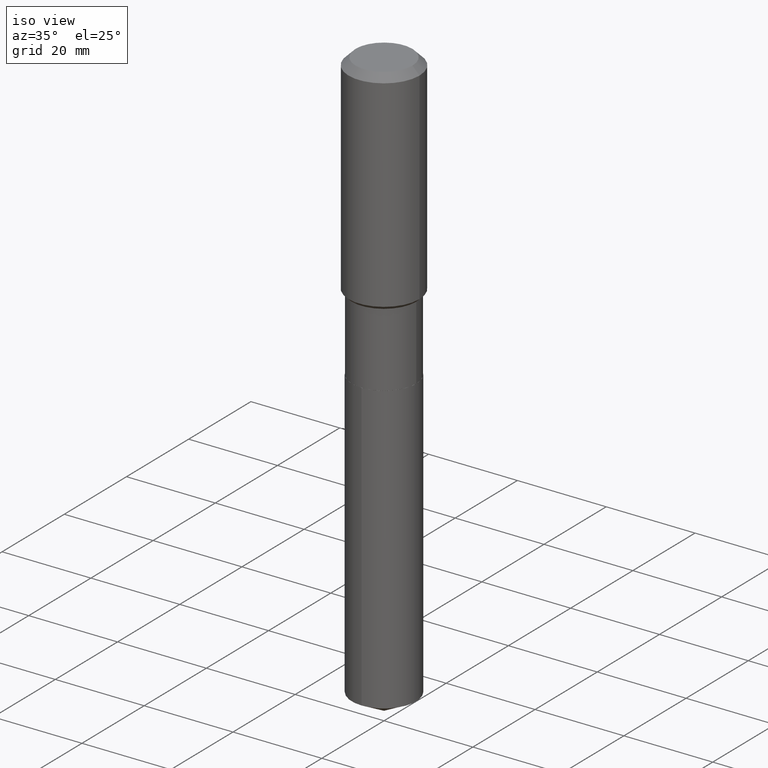
[diagram: clean part render]
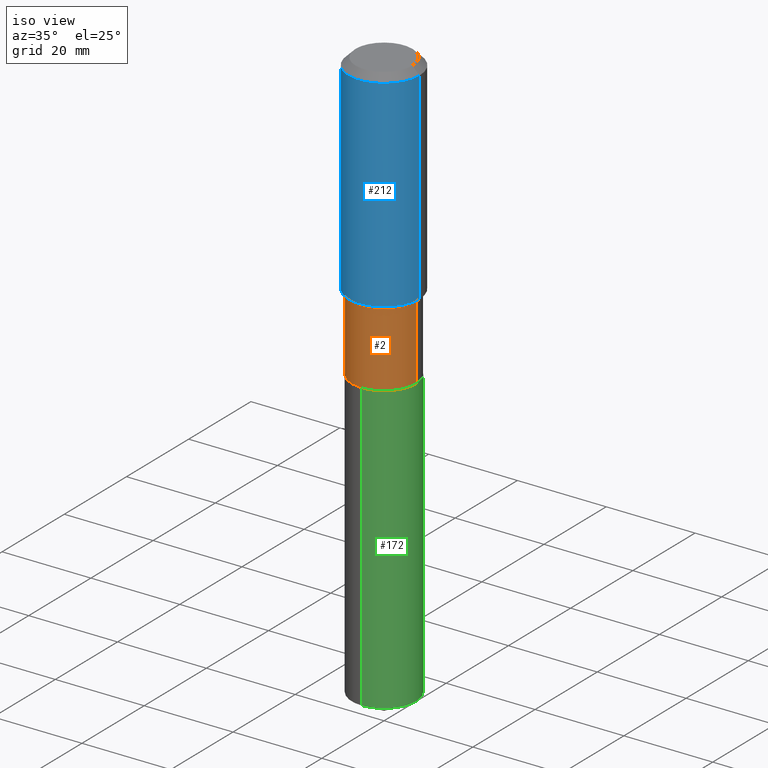
[diagram: same view with three faces highlighted in distinct colors, each labeled with its STEP entity id]
A machine part, iso view with three faces highlighted in distinct colors.
Their STEP definitions:

[orange] entity #2 — the highlighted cylindrical surface (partial cylindrical patch) has radius 7.2504 mm, axis along (-0, 0, 1).
#2 = ADVANCED_FACE ( 'NONE', ( #76 ), #378, .T. ) ;
#3 = ORIENTED_EDGE ( 'NONE', *, *, #293, .F. ) ;
#5 = VERTEX_POINT ( 'NONE', #239 ) ;
#25 = VERTEX_POINT ( 'NONE', #267 ) ;
#28 = ORIENTED_EDGE ( 'NONE', *, *, #431, .T. ) ;
#29 = CARTESIAN_POINT ( 'NONE',  ( 6.208800752023443286E-29, -8.864521971188861865E-15, -2.538899999999999935 ) ) ;
#47 = DIRECTION ( 'NONE',  ( 1.000000000000000000, -6.982962677686265922E-15, 4.876176775795935232E-29 ) ) ;
#59 = LINE ( 'NONE', #336, #63 ) ;
#63 = VECTOR ( 'NONE', #214, 39.37007874015748143 ) ;
#76 = FACE_OUTER_BOUND ( 'NONE', #194, .T. ) ;
#101 = DIRECTION ( 'NONE',  ( 1.000000000000000000, -6.982962677686267499E-15, 0.000000000000000000 ) ) ;
#144 = CARTESIAN_POINT ( 'NONE',  ( 4.604573215165994355E-29, -6.574110212907759252E-15, -1.882900000000000240 ) ) ;
#148 = CIRCLE ( 'NONE', #430, 0.2854500000000000370 ) ;
#153 = ORIENTED_EDGE ( 'NONE', *, *, #275, .T. ) ;
#186 = CARTESIAN_POINT ( 'NONE',  ( -0.2854499999999999260, -5.691071852821104709E-15, -1.882900000000000240 ) ) ;
#194 = EDGE_LOOP ( 'NONE', ( #366, #153, #28, #3 ) ) ;
#197 = LINE ( 'NONE', #380, #298 ) ;
#214 = DIRECTION ( 'NONE',  ( -2.445468806185136877E-29, 3.491481338843145188E-15, 1.000000000000000000 ) ) ;
#216 = CIRCLE ( 'NONE', #320, 0.2854499999999999260 ) ;
#222 = DIRECTION ( 'NONE',  ( 1.000000000000000000, -6.982962677686267499E-15, 0.000000000000000000 ) ) ;
#227 = DIRECTION ( 'NONE',  ( -2.445468806185136877E-29, 3.491481338843145188E-15, 1.000000000000000000 ) ) ;
#231 = AXIS2_PLACEMENT_3D ( 'NONE', #381, #273, #47 ) ;
#239 = CARTESIAN_POINT ( 'NONE',  ( 0.2854499999999999260, -8.567396909253303813E-15, -1.882900000000000240 ) ) ;
#254 = VERTEX_POINT ( 'NONE', #291 ) ;
#267 = CARTESIAN_POINT ( 'NONE',  ( 0.2854500000000000370, -1.085780866753440800E-14, -2.538899999999999935 ) ) ;
#273 = DIRECTION ( 'NONE',  ( -2.445468806185136597E-29, 3.491481338843145583E-15, 1.000000000000000000 ) ) ;
#275 = EDGE_CURVE ( 'NONE', #254, #25, #148, .T. ) ;
#287 = EDGE_CURVE ( 'NONE', #254, #304, #59, .T. ) ;
#291 = CARTESIAN_POINT ( 'NONE',  ( -0.2854500000000000370, -5.691071852821104709E-15, -2.538899999999999935 ) ) ;
#293 = EDGE_CURVE ( 'NONE', #304, #5, #216, .T. ) ;
#298 = VECTOR ( 'NONE', #227, 39.37007874015748143 ) ;
#304 = VERTEX_POINT ( 'NONE', #186 ) ;
#320 = AXIS2_PLACEMENT_3D ( 'NONE', #144, #441, #101 ) ;
#336 = CARTESIAN_POINT ( 'NONE',  ( -0.2854499999999999815, 2.028244239227205849E-15, -1.404110021513262784E-29 ) ) ;
#366 = ORIENTED_EDGE ( 'NONE', *, *, #287, .F. ) ;
#367 = DIRECTION ( 'NONE',  ( -2.445468806185136597E-29, 3.491481338843145583E-15, 1.000000000000000000 ) ) ;
#378 = CYLINDRICAL_SURFACE ( 'NONE', #231, 0.2854499999999999815 ) ;
#380 = CARTESIAN_POINT ( 'NONE',  ( 0.2854499999999999815, -1.993286696345544561E-15, 1.391904660650949682E-29 ) ) ;
#381 = CARTESIAN_POINT ( 'NONE',  ( 0.000000000000000000, 0.000000000000000000, 0.000000000000000000 ) ) ;
#430 = AXIS2_PLACEMENT_3D ( 'NONE', #29, #367, #222 ) ;
#431 = EDGE_CURVE ( 'NONE', #25, #5, #197, .T. ) ;
#441 = DIRECTION ( 'NONE',  ( -2.445468806185136597E-29, 3.491481338843145583E-15, 1.000000000000000000 ) ) ;

[blue] entity #212 — the highlighted cylindrical surface (partial cylindrical patch) has radius 7.9997 mm, axis along (-0, 0, 1).
#7 = DIRECTION ( 'NONE',  ( 1.000000000000000000, -6.982962677686266711E-15, 0.000000000000000000 ) ) ;
#9 = AXIS2_PLACEMENT_3D ( 'NONE', #90, #392, #207 ) ;
#34 = ORIENTED_EDGE ( 'NONE', *, *, #399, .T. ) ;
#38 = ORIENTED_EDGE ( 'NONE', *, *, #455, .T. ) ;
#71 = CARTESIAN_POINT ( 'NONE',  ( 0.3149500000000002298, -8.670395608749178046E-15, -1.853399999999999936 ) ) ;
#80 = VECTOR ( 'NONE', #409, 39.37007874015748143 ) ;
#82 = CARTESIAN_POINT ( 'NONE',  ( 0.3149500000000000077, -2.419212504871020909E-15, -0.06299000000000037902 ) ) ;
#90 = CARTESIAN_POINT ( 'NONE',  ( 0.000000000000000000, 0.000000000000000000, 0.000000000000000000 ) ) ;
#92 = CARTESIAN_POINT ( 'NONE',  ( -0.3149500000000000077, -1.107665615196371650E-15, -0.06299000000000037902 ) ) ;
#103 = CARTESIAN_POINT ( 'NONE',  ( -0.3149500000000001743, 2.237854346276436774E-15, -1.549218606675783237E-29 ) ) ;
#134 = VECTOR ( 'NONE', #142, 39.37007874015748143 ) ;
#142 = DIRECTION ( 'NONE',  ( -2.445468806185136877E-29, 3.491481338843145188E-15, 1.000000000000000000 ) ) ;
#154 = CARTESIAN_POINT ( 'NONE',  ( 4.532431885383532521E-29, -6.471111513411885808E-15, -1.853399999999999936 ) ) ;
#177 = VERTEX_POINT ( 'NONE', #92 ) ;
#207 = DIRECTION ( 'NONE',  ( 1.000000000000000000, -6.982962677686265922E-15, 4.876176775795935232E-29 ) ) ;
#212 = ADVANCED_FACE ( 'NONE', ( #247 ), #424, .T. ) ;
#221 = ORIENTED_EDGE ( 'NONE', *, *, #407, .F. ) ;
#240 = AXIS2_PLACEMENT_3D ( 'NONE', #154, #457, #447 ) ;
#247 = FACE_OUTER_BOUND ( 'NONE', #368, .T. ) ;
#258 = CARTESIAN_POINT ( 'NONE',  ( -0.3149500000000002298, -4.233257167135448246E-15, -1.853399999999999936 ) ) ;
#294 = ORIENTED_EDGE ( 'NONE', *, *, #329, .F. ) ;
#295 = LINE ( 'NONE', #103, #80 ) ;
#329 = EDGE_CURVE ( 'NONE', #342, #177, #295, .T. ) ;
#334 = LINE ( 'NONE', #480, #134 ) ;
#340 = VERTEX_POINT ( 'NONE', #71 ) ;
#342 = VERTEX_POINT ( 'NONE', #258 ) ;
#349 = CARTESIAN_POINT ( 'NONE',  ( 1.540400801016026505E-30, -2.199284095337310628E-16, -0.06299000000000037902 ) ) ;
#359 = CIRCLE ( 'NONE', #240, 0.3149500000000002298 ) ;
#368 = EDGE_LOOP ( 'NONE', ( #294, #38, #34, #221 ) ) ;
#385 = DIRECTION ( 'NONE',  ( -2.445468806185136597E-29, 3.491481338843145583E-15, 1.000000000000000000 ) ) ;
#392 = DIRECTION ( 'NONE',  ( -2.445468806185136597E-29, 3.491481338843145583E-15, 1.000000000000000000 ) ) ;
#399 = EDGE_CURVE ( 'NONE', #340, #438, #334, .T. ) ;
#407 = EDGE_CURVE ( 'NONE', #177, #438, #454, .T. ) ;
#409 = DIRECTION ( 'NONE',  ( -2.445468806185136877E-29, 3.491481338843145188E-15, 1.000000000000000000 ) ) ;
#424 = CYLINDRICAL_SURFACE ( 'NONE', #9, 0.3149500000000001743 ) ;
#438 = VERTEX_POINT ( 'NONE', #82 ) ;
#447 = DIRECTION ( 'NONE',  ( 1.000000000000000000, -6.982962677686268288E-15, 0.000000000000000000 ) ) ;
#454 = CIRCLE ( 'NONE', #471, 0.3149500000000000077 ) ;
#455 = EDGE_CURVE ( 'NONE', #342, #340, #359, .T. ) ;
#457 = DIRECTION ( 'NONE',  ( -2.445468806185136597E-29, 3.491481338843145583E-15, 1.000000000000000000 ) ) ;
#471 = AXIS2_PLACEMENT_3D ( 'NONE', #349, #385, #7 ) ;
#480 = CARTESIAN_POINT ( 'NONE',  ( 0.3149500000000001743, -2.199284095337290660E-15, 1.535751875536930690E-29 ) ) ;

[green] entity #172 — the highlighted cylindrical surface (partial cylindrical patch) has radius 7.2504 mm, axis along (-0, 0, 1).
#6 = EDGE_CURVE ( 'NONE', #333, #406, #278, .T. ) ;
#8 = DIRECTION ( 'NONE',  ( -2.445298008825431619E-29, 3.491725930383425433E-15, 1.000000000000000000 ) ) ;
#26 = EDGE_CURVE ( 'NONE', #406, #384, #274, .T. ) ;
#40 = AXIS2_PLACEMENT_3D ( 'NONE', #405, #220, #260 ) ;
#45 = EDGE_CURVE ( 'NONE', #446, #384, #191, .T. ) ;
#51 = FACE_OUTER_BOUND ( 'NONE', #347, .T. ) ;
#74 = DIRECTION ( 'NONE',  ( -2.445298008825431338E-29, 3.491725930383425433E-15, 1.000000000000000000 ) ) ;
#94 = CYLINDRICAL_SURFACE ( 'NONE', #421, 0.2854499999999999815 ) ;
#147 = VECTOR ( 'NONE', #8, 39.37007874015748143 ) ;
#151 = CARTESIAN_POINT ( 'NONE',  ( 6.210023486426536087E-29, -8.866267711858284157E-15, -2.539400000000000102 ) ) ;
#155 = CARTESIAN_POINT ( 'NONE',  ( -1.993286696345482241E-15, -0.2854500000000088633, -2.539399999999999213 ) ) ;
#171 = CARTESIAN_POINT ( 'NONE',  ( 6.210023486426536087E-29, -8.866267711858284157E-15, -2.539400000000000102 ) ) ;
#172 = ADVANCED_FACE ( 'NONE', ( #51 ), #94, .T. ) ;
#179 = CARTESIAN_POINT ( 'NONE',  ( -1.993286696345420316E-15, -0.2854500000000176896, -5.084423542732230850 ) ) ;
#191 = LINE ( 'NONE', #489, #147 ) ;
#203 = DIRECTION ( 'NONE',  ( -6.982962677686265922E-15, -1.000000000000000000, 3.828128209723963046E-15 ) ) ;
#204 = DIRECTION ( 'NONE',  ( -2.445298008825431338E-29, 3.491725930383425433E-15, 1.000000000000000000 ) ) ;
#215 = ORIENTED_EDGE ( 'NONE', *, *, #45, .T. ) ;
#220 = DIRECTION ( 'NONE',  ( -2.445298008825431338E-29, 3.491725930383425433E-15, 1.000000000000000000 ) ) ;
#232 = CIRCLE ( 'NONE', #40, 0.2854499999999999815 ) ;
#253 = VECTOR ( 'NONE', #277, 39.37007874015748143 ) ;
#260 = DIRECTION ( 'NONE',  ( -6.982962677686265922E-15, -1.000000000000000000, 3.828128209723963046E-15 ) ) ;
#274 = CIRCLE ( 'NONE', #319, 0.2854499999999999815 ) ;
#277 = DIRECTION ( 'NONE',  ( -2.445298008825431619E-29, 3.491725930383425433E-15, 1.000000000000000000 ) ) ;
#278 = LINE ( 'NONE', #155, #253 ) ;
#302 = ORIENTED_EDGE ( 'NONE', *, *, #322, .T. ) ;
#309 = ORIENTED_EDGE ( 'NONE', *, *, #26, .F. ) ;
#314 = CARTESIAN_POINT ( 'NONE',  ( 2.028244239227329306E-15, 0.2854499999999822180, -5.084423542732233514 ) ) ;
#316 = ORIENTED_EDGE ( 'NONE', *, *, #6, .F. ) ;
#319 = AXIS2_PLACEMENT_3D ( 'NONE', #151, #74, #203 ) ;
#322 = EDGE_CURVE ( 'NONE', #333, #446, #232, .T. ) ;
#333 = VERTEX_POINT ( 'NONE', #179 ) ;
#341 = CARTESIAN_POINT ( 'NONE',  ( -1.993286696345482241E-15, -0.2854500000000088633, -2.539399999999999213 ) ) ;
#347 = EDGE_LOOP ( 'NONE', ( #302, #215, #309, #316 ) ) ;
#384 = VERTEX_POINT ( 'NONE', #403 ) ;
#403 = CARTESIAN_POINT ( 'NONE',  ( 2.028244239227330489E-15, 0.2854499999999910997, -2.539400000000001434 ) ) ;
#405 = CARTESIAN_POINT ( 'NONE',  ( 1.243336448788351019E-28, -1.775279240945271103E-14, -5.084423542732232626 ) ) ;
#406 = VERTEX_POINT ( 'NONE', #341 ) ;
#421 = AXIS2_PLACEMENT_3D ( 'NONE', #171, #204, #432 ) ;
#432 = DIRECTION ( 'NONE',  ( -6.982962677686265922E-15, -1.000000000000000000, 3.828128209723963046E-15 ) ) ;
#446 = VERTEX_POINT ( 'NONE', #314 ) ;
#489 = CARTESIAN_POINT ( 'NONE',  ( 2.028244239227267775E-15, 0.2854499999999910997, -2.539400000000001434 ) ) ;